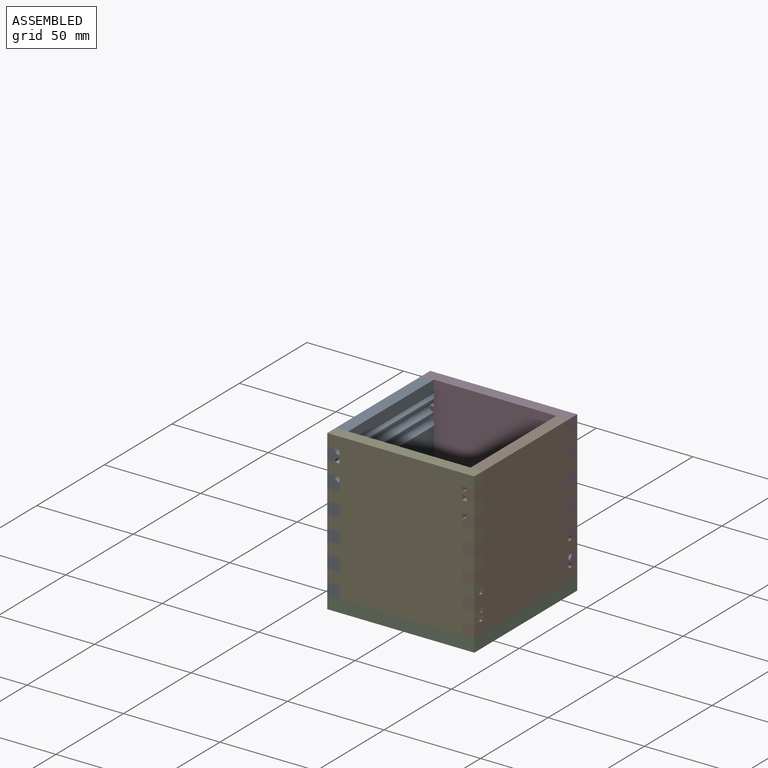
[diagram: assembled view]
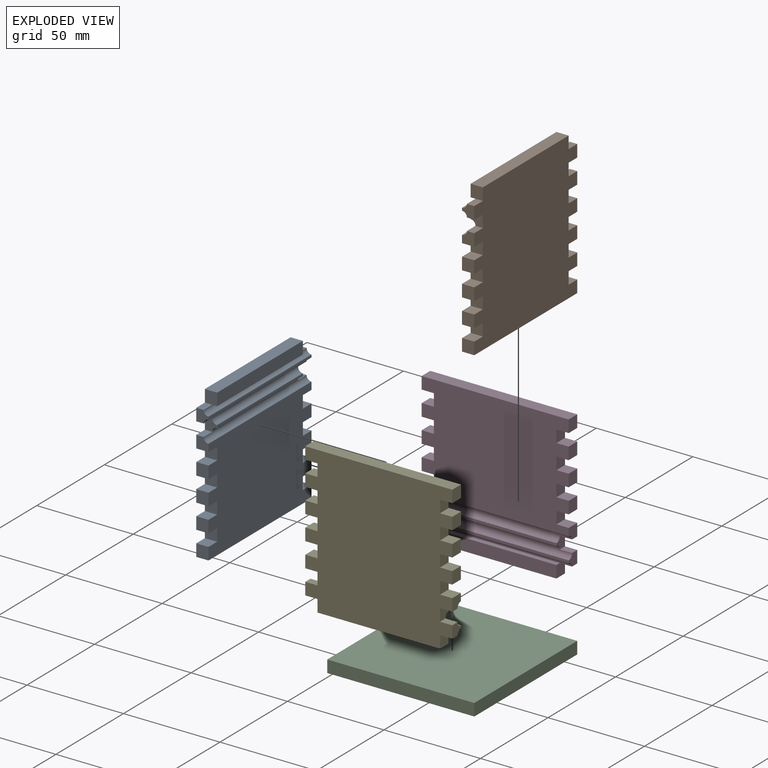
[diagram: exploded view]
GUIDED TOUR — MATED ASSEMBLY (Onshape document 4bcecb40b126440fb56b0a20, AutoMate assembly 4bcecb40b126440fb56b0a20_f1498c39f0a1d220b921871c_9d1d6eb9c86af5bd389e2171_default)

This assembly has 5 components, labeled P0..P4 below (a component is one placed occurrence of a part; the same part can appear more than once), held together by 4 mates. A mate is a constraint between two components; its type names the relative motion it leaves free:
  FASTENED — locks the two components together rigidly (no relative motion).
Axis/direction vectors are unit vectors and 'through' points are millimeter coordinates, both in the assembly's world frame.

MATES
  1. FASTENED "Fastened 4": P0 <-> P3, direction (0.000, 1.000, 0.000) through (-43.61, 105.58, 14.43) mm
  2. FASTENED "Fastened 1": P0 <-> P4, direction (0.000, -1.000, 0.000) through (-43.61, 29.38, 14.43) mm
  3. FASTENED "Fastened 3": P0 <-> P2, direction (0.000, 0.000, 1.000) through (-49.96, 29.38, 8.08) mm
  4. FASTENED "Fastened 2": P2 <-> P1, direction (0.000, 0.000, 1.000) through (26.24, 29.38, 8.08) mm

ASSEMBLY ORDER
  1. P3 — the base component [order verified]
  2. P0 [order verified]
  3. P1 [order verified]
  4. P4 [order verified]
  5. P2 [order verified]
Order-tag legend:
  [order verified] — this step's position reverses a verified removal order: the component was checked to insert without passing through the ones already placed.

Of the 5 components, 5 carry the full construction recipe — the FeatureScript program that regenerates the part's solid from scratch; the rest are supplied as boundary geometry only.
Each toured component is shown spotlighted twice — in the assembled view, then in the exploded view, where a leader line traces a displaced component back to its assembled socket (saturated green if recipe-attached, orange if geometry-only; every other component desaturated gray) — followed by its recipe or geometry summary and the mates that hold it.
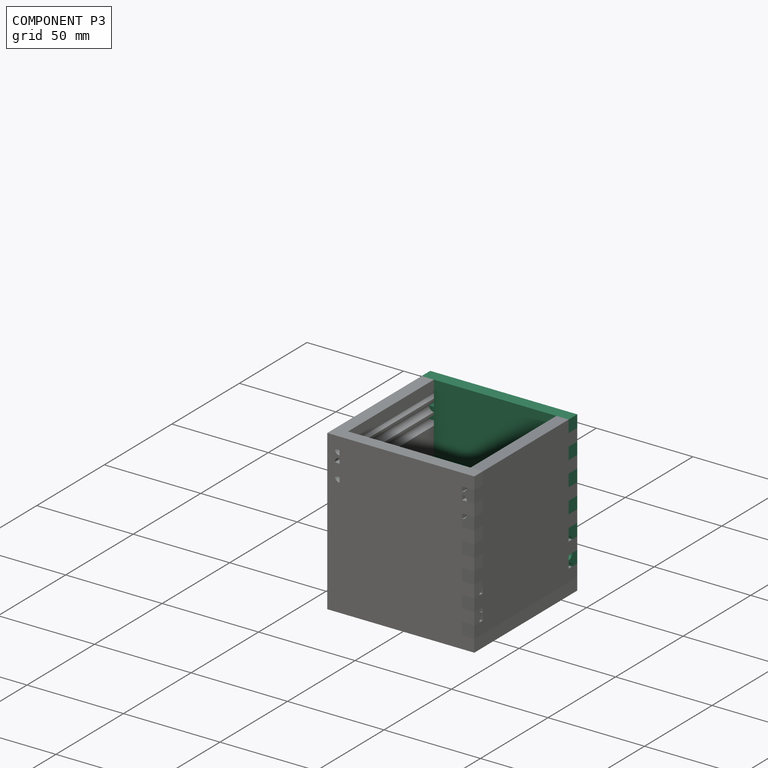
[diagram: component P3 — assembled]
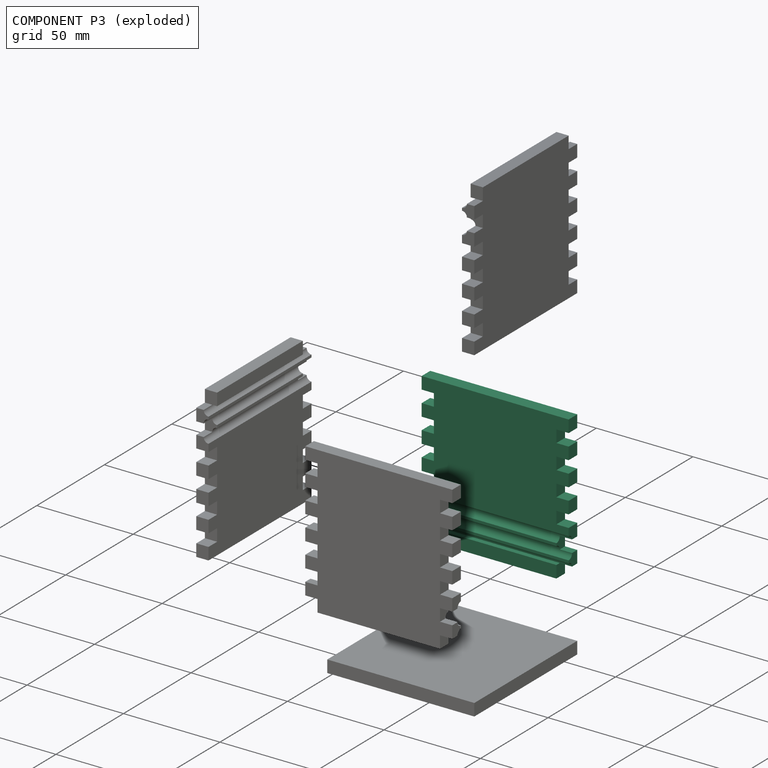
[diagram: component P3 — exploded]
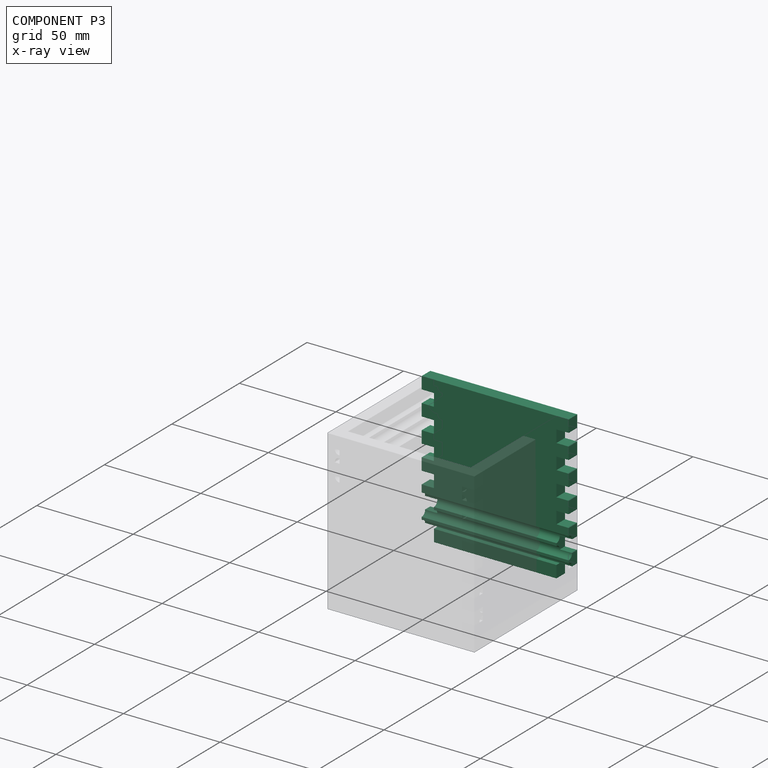
[diagram: component P3 — x-ray view]
COMPONENT P3 — same part as P0 (CADFS 00627153); its construction recipe is shown at P0.
Held by: FASTENED mate "Fastened 4" to P0.
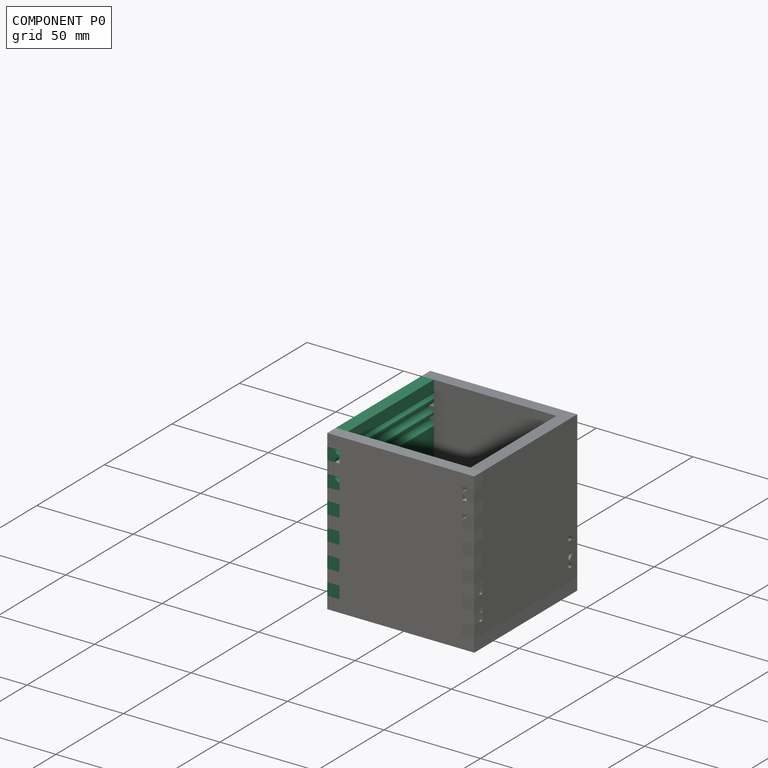
[diagram: component P0 — assembled]
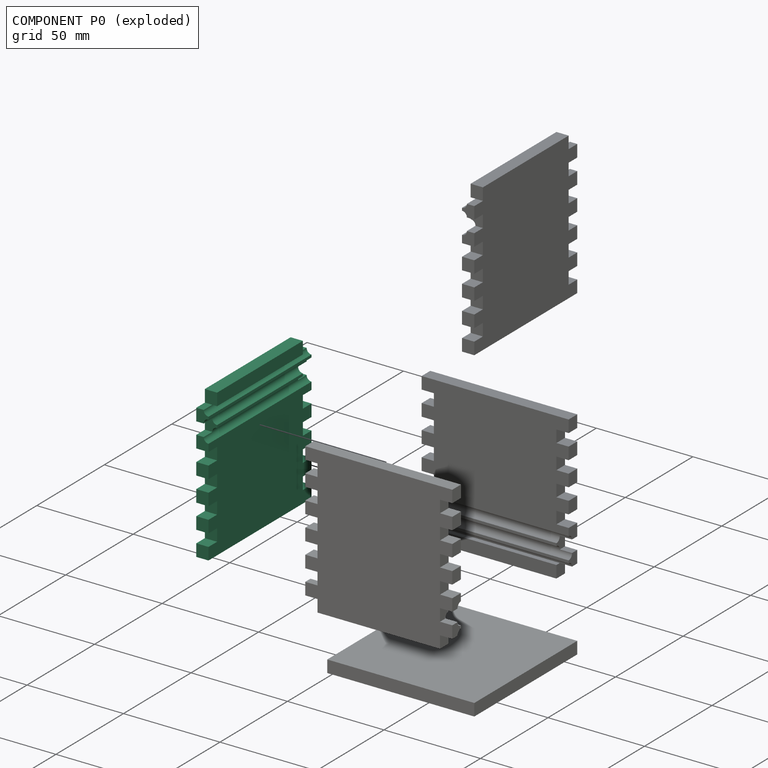
[diagram: component P0 — exploded]
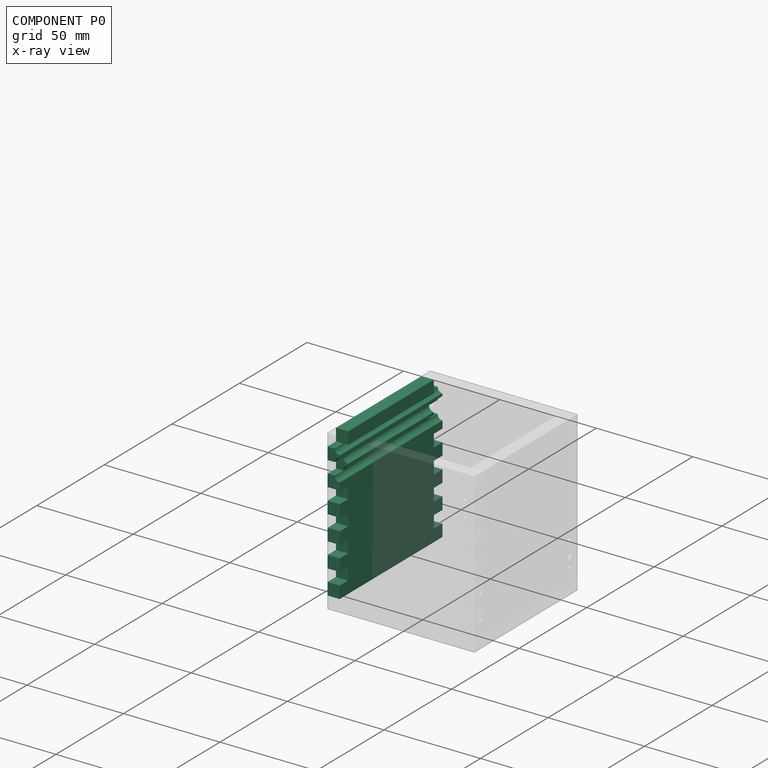
[diagram: component P0 — x-ray view]
COMPONENT P0 — recipe-attached (CADFS 00627153, mesh-verified: the recipe's output STEP matches this component's geometry to below the mesh-comparison resolution (tessellation chordal tolerance ~0.162 mm)).
Held by: FASTENED mate "Fastened 4" to P3; FASTENED mate "Fastened 1" to P4; FASTENED mate "Fastened 3" to P2.
Construction recipe (FeatureScript — the CAD program that rebuilds this solid; sketch coordinates are in the units given by the * unit suffixes, e.g. mm):

FeatureScript 1511;
import(path : "onshape/std/geometry.fs", version : "1511.0");
import(path : "onshape/std/common.fs", version : "1511.0");
const mm = millimeter;
const VERTEX = EntityType.VERTEX;
const EDGE = EntityType.EDGE;
const FACE = EntityType.FACE;
const BODY = EntityType.BODY;
function v(x, y){return vector(x, y);}
function OD(order){return orderDisambiguation(order);}
function OSD(set){return originalSetDisambiguation(set);}
function TD(topology){return topologyDisambiguation(topology);}
function TDD(query){return trueDependencyDisambiguation(query);}
function sQuery(a, b, c) {return sketchEntityQuery(a, b, c);}

annotation { "Feature Type Name" : "Feature", "Feature Type Description" : "" }
export const myFeature = defineFeature(function(context is Context, id is Id, definition is map)
    precondition{}
    {
        {
            var Q0;
            Q0=qCreatedBy(makeId("Front.planeOp"),FACE);
            var sketch = newSketch(context, id + "F0", { "sketchPlane" : qUnion([Q0])});
            skLineSegment(sketch, "E0", {"start": v(-134.03, 0) * mm, "end": v(134.03, 0) * mm, "construction": true});
            skLineSegment(sketch, "E1.bottom", {"start": v(-38.1, 38.1) * mm, "end": v(38.1, 38.1) * mm});
            skLineSegment(sketch, "E1.top", {"start": v(-38.1, -38.1) * mm, "end": v(38.1, -38.1) * mm});
            skLineSegment(sketch, "E1.left", {"start": v(-38.1, 38.1) * mm, "end": v(-38.1, -38.1) * mm});
            skLineSegment(sketch, "E1.right", {"start": v(38.1, 38.1) * mm, "end": v(38.1, -38.1) * mm});
            skLineSegment(sketch, "E2", {"start": v(0, 82.06) * mm, "end": v(0, -82.06) * mm, "construction": true});
            skLineSegment(sketch, "E3", {"start": v(-31.75, 38.1) * mm, "end": v(-31.75, -38.1) * mm, "construction": true});
            skLineSegment(sketch, "E4", {"start": v(31.75, 38.1) * mm, "end": v(31.75, -38.1) * mm, "construction": true});
            skLineSegment(sketch, "E5", {"start": v(-38.1, 31.75) * mm, "end": v(-31.75, 31.75) * mm});
            skLineSegment(sketch, "E6.0.1.0", {"start": v(-38.1, 25.4) * mm, "end": v(-31.75, 25.4) * mm});
            skLineSegment(sketch, "E6.0.2.0", {"start": v(-38.1, 19.05) * mm, "end": v(-31.75, 19.05) * mm});
            skLineSegment(sketch, "E6.0.3.0", {"start": v(-38.1, 12.7) * mm, "end": v(-31.75, 12.7) * mm});
            skLineSegment(sketch, "E6.0.4.0", {"start": v(-38.1, 6.35) * mm, "end": v(-31.75, 6.35) * mm});
            skLineSegment(sketch, "E6.0.5.0", {"start": v(-38.1, 0) * mm, "end": v(-31.75, 0) * mm});
            skLineSegment(sketch, "E6.0.6.0", {"start": v(-38.1, -6.35) * mm, "end": v(-31.75, -6.35) * mm});
            skLineSegment(sketch, "E6.0.7.0", {"start": v(-38.1, -12.7) * mm, "end": v(-31.75, -12.7) * mm});
            skLineSegment(sketch, "E6.0.8.0", {"start": v(-38.1, -19.05) * mm, "end": v(-31.75, -19.05) * mm});
            skLineSegment(sketch, "E6.0.9.0", {"start": v(-38.1, -25.4) * mm, "end": v(-31.75, -25.4) * mm});
            skLineSegment(sketch, "E6.0.10.0", {"start": v(-38.1, -31.75) * mm, "end": v(-31.75, -31.75) * mm});
            skLineSegment(sketch, "E6.0.11.0", {"start": v(-38.1, -38.1) * mm, "end": v(-31.75, -38.1) * mm});
            skLineSegment(sketch, "E6.direction1", {"start": v(-38.1, 31.75) * mm, "end": v(-13.1, 31.75) * mm, "construction": true});
            skLineSegment(sketch, "E6.direction2", {"start": v(-38.1, 31.75) * mm, "end": v(-38.1, 25.4) * mm, "construction": true});
            skLineSegment(sketch, "E7", {"start": v(-31.75, 38.1) * mm, "end": v(-31.75, 31.75) * mm});
            skLineSegment(sketch, "E8", {"start": v(-31.75, 25.4) * mm, "end": v(-31.75, 19.05) * mm});
            skLineSegment(sketch, "E9", {"start": v(-31.75, 12.7) * mm, "end": v(-31.75, 6.35) * mm});
            skLineSegment(sketch, "E10", {"start": v(-31.75, 0) * mm, "end": v(-31.75, -6.35) * mm});
            skLineSegment(sketch, "E11", {"start": v(-31.75, -12.7) * mm, "end": v(-31.75, -19.05) * mm});
            skLineSegment(sketch, "E12", {"start": v(-31.75, -25.4) * mm, "end": v(-31.75, -31.75) * mm});
            skLineSegment(sketch, "E13.MirrorCS", {"start": v(31.75, 38.1) * mm, "end": v(31.75, 31.75) * mm});
            skLineSegment(sketch, "E14.MirrorCS", {"start": v(38.1, 31.75) * mm, "end": v(38.1, 25.4) * mm, "construction": true});
            skLineSegment(sketch, "E15.MirrorCS", {"start": v(38.1, 31.75) * mm, "end": v(31.75, 31.75) * mm});
            skLineSegment(sketch, "E16.MirrorCS", {"start": v(38.1, 25.4) * mm, "end": v(31.75, 25.4) * mm});
            skLineSegment(sketch, "E17.MirrorCS", {"start": v(31.75, -25.4) * mm, "end": v(31.75, -31.75) * mm});
            skLineSegment(sketch, "E18.MirrorCS", {"start": v(31.75, 25.4) * mm, "end": v(31.75, 19.05) * mm});
            skLineSegment(sketch, "E19.MirrorCS", {"start": v(31.75, 12.7) * mm, "end": v(31.75, 6.35) * mm});
            skLineSegment(sketch, "E20.MirrorCS", {"start": v(31.75, -12.7) * mm, "end": v(31.75, -19.05) * mm});
            skLineSegment(sketch, "E21.MirrorCS", {"start": v(38.1, -38.1) * mm, "end": v(31.75, -38.1) * mm});
            skLineSegment(sketch, "E22.MirrorCS", {"start": v(31.75, 0) * mm, "end": v(31.75, -6.35) * mm});
            skLineSegment(sketch, "E23.MirrorCS", {"start": v(38.1, -25.4) * mm, "end": v(31.75, -25.4) * mm});
            skLineSegment(sketch, "E24.MirrorCS", {"start": v(38.1, -31.75) * mm, "end": v(31.75, -31.75) * mm});
            skLineSegment(sketch, "E25.MirrorCS", {"start": v(38.1, -19.05) * mm, "end": v(31.75, -19.05) * mm});
            skLineSegment(sketch, "E26.MirrorCS", {"start": v(38.1, 19.05) * mm, "end": v(31.75, 19.05) * mm});
            skLineSegment(sketch, "E27.MirrorCS", {"start": v(38.1, 12.7) * mm, "end": v(31.75, 12.7) * mm});
            skLineSegment(sketch, "E28.MirrorCS", {"start": v(38.1, 0) * mm, "end": v(31.75, 0) * mm});
            skLineSegment(sketch, "E29.MirrorCS", {"start": v(38.1, -6.35) * mm, "end": v(31.75, -6.35) * mm});
            skLineSegment(sketch, "E30.MirrorCS", {"start": v(38.1, -12.7) * mm, "end": v(31.75, -12.7) * mm});
            skLineSegment(sketch, "E31.MirrorCS", {"start": v(38.1, 6.35) * mm, "end": v(31.75, 6.35) * mm});
            skSolve(sketch);
        }
        {
            var Q0;
            Q0=makeQuery(id+"F0.imprint","IMPRINT",FACE,{"disambiguationData":[TD([[makeQuery(id+"F0.imprint","IMPRINT",EDGE,{"derivedFrom":sQuery(id+"F0.wireOp",EDGE,"E1.top")}),1.0]])]});
            extrude(context, id + "F1", {"entities" : qUnion([Q0]), "depth" : 6.35 * mm, "offsetDistance" : 25 * mm});
        }
        {
            var Q0;
            {var subQ0=sQuery(id+"F0.wireOp",EDGE,"E1.left");Q0=makeQuery(id+"F1.opExtrude","SWEPT_FACE",FACE,{"disambiguationData":[OSD([subQ0]),TDD([makeQuery(id+"F0.imprint","IMPRINT",EDGE,{"disambiguationData":[TD([[makeQuery(id+"F0.imprint","INTERSECT",VERTEX,{"derivedFrom":[subQ0,sQuery(id+"F0.wireOp",EDGE,"E5")]}),-1.0]])],"derivedFrom":subQ0})])]});}
            var sketch = newSketch(context, id + "F2", { "sketchPlane" : qUnion([Q0])});
            skLineSegment(sketch, "E32.0.0", {"start": v(0, 38.1) * mm, "end": v(0, 31.75) * mm, "construction": true});
            skLineSegment(sketch, "E32.0.1", {"start": v(0, 31.75) * mm, "end": v(6.35, 31.75) * mm, "construction": true});
            skLineSegment(sketch, "E32.0.2", {"start": v(6.35, 31.75) * mm, "end": v(6.35, 38.1) * mm, "construction": true});
            skLineSegment(sketch, "E32.0.3", {"start": v(6.35, 38.1) * mm, "end": v(0, 38.1) * mm, "construction": true});
            skLineSegment(sketch, "E33", {"start": v(6.35, 38.1) * mm, "end": v(6.35, 5.95) * mm, "construction": true});
            skLineSegment(sketch, "E34.0.0", {"start": v(0, 31.75) * mm, "end": v(0, 25.4) * mm, "construction": true});
            skLineSegment(sketch, "E34.0.1", {"start": v(0, 25.4) * mm, "end": v(6.35, 25.4) * mm, "construction": true});
            skLineSegment(sketch, "E34.0.2", {"start": v(6.35, 25.4) * mm, "end": v(6.35, 31.75) * mm, "construction": true});
            skLineSegment(sketch, "E34.0.3", {"start": v(6.35, 31.75) * mm, "end": v(0, 31.75) * mm, "construction": true});
            skLineSegment(sketch, "E35.0.0", {"start": v(0, 25.4) * mm, "end": v(0, 19.05) * mm, "construction": true});
            skLineSegment(sketch, "E35.0.1", {"start": v(0, 19.05) * mm, "end": v(6.35, 19.05) * mm, "construction": true});
            skLineSegment(sketch, "E35.0.2", {"start": v(6.35, 19.05) * mm, "end": v(6.35, 25.4) * mm, "construction": true});
            skLineSegment(sketch, "E35.0.3", {"start": v(6.35, 25.4) * mm, "end": v(0, 25.4) * mm, "construction": true});
            skLineSegment(sketch, "E36.0.0", {"start": v(0, 19.05) * mm, "end": v(0, 12.7) * mm, "construction": true});
            skLineSegment(sketch, "E36.0.1", {"start": v(0, 12.7) * mm, "end": v(6.35, 12.7) * mm, "construction": true});
            skLineSegment(sketch, "E36.0.2", {"start": v(6.35, 12.7) * mm, "end": v(6.35, 19.05) * mm, "construction": true});
            skLineSegment(sketch, "E36.0.3", {"start": v(6.35, 19.05) * mm, "end": v(0, 19.05) * mm, "construction": true});
            skCircle(sketch, "E37", {"center": v(6.35, 31.75) * mm, "radius": 2.5 * mm});
            skCircle(sketch, "E38", {"center": v(6.35, 25.4) * mm, "radius": 2.5 * mm});
            skCircle(sketch, "E39", {"center": v(6.35, 19.05) * mm, "radius": 2.5 * mm});
            skSolve(sketch);
        }
        {
            var Q0;
            {var subQ0=sQuery(id+"F2.wireOp",EDGE,"E37");var subQ1=sQuery(id+"F0.wireOp",EDGE,"E5");var subQ2=sQuery(id+"F0.wireOp",EDGE,"E1.left");var subQ3=makeQuery(id+"F1.opExtrude","SWEPT_EDGE",EDGE,{"disambiguationData":[OSD([subQ2,subQ1])]});var subQ4=makeQuery(id+"F2.imprint","INTERSECT",VERTEX,{"derivedFrom":[subQ3,subQ0]});Q0=makeQuery(id+"F2.imprint","IMPRINT",FACE,{"disambiguationData":[TD([[makeQuery(id+"F2.imprint","IMPRINT",EDGE,{"disambiguationData":[TD([[subQ4,-1.0]])],"derivedFrom":subQ0}),1.0]])]});}
            var Q1;
            {var subQ0=sQuery(id+"F2.wireOp",EDGE,"E38");var subQ1=sQuery(id+"F0.wireOp",EDGE,"E6.0.1.0");var subQ2=sQuery(id+"F0.wireOp",EDGE,"E1.left");var subQ3=makeQuery(id+"F1.opExtrude","SWEPT_EDGE",EDGE,{"disambiguationData":[OSD([subQ2,subQ1])]});var subQ4=makeQuery(id+"F2.imprint","INTERSECT",VERTEX,{"derivedFrom":[subQ3,subQ0]});Q1=makeQuery(id+"F2.imprint","IMPRINT",FACE,{"disambiguationData":[TD([[makeQuery(id+"F2.imprint","IMPRINT",EDGE,{"disambiguationData":[TD([[subQ4,1.0]])],"derivedFrom":subQ0}),1.0]])]});}
            var Q2;
            {var subQ0=sQuery(id+"F2.wireOp",EDGE,"E38");var subQ1=sQuery(id+"F0.wireOp",EDGE,"E6.0.1.0");var subQ2=sQuery(id+"F0.wireOp",EDGE,"E1.left");var subQ3=makeQuery(id+"F1.opExtrude","SWEPT_EDGE",EDGE,{"disambiguationData":[OSD([subQ2,subQ1])]});var subQ4=makeQuery(id+"F2.imprint","INTERSECT",VERTEX,{"derivedFrom":[subQ3,subQ0]});Q2=makeQuery(id+"F2.imprint","IMPRINT",FACE,{"disambiguationData":[TD([[makeQuery(id+"F2.imprint","IMPRINT",EDGE,{"disambiguationData":[TD([[subQ4,-1.0]])],"derivedFrom":subQ0}),1.0]])]});}
            var Q3;
            Q3=makeQuery(id+"F2.imprint","IMPRINT",FACE,{"disambiguationData":[TD([[makeQuery(id+"F2.imprint","IMPRINT",EDGE,{"derivedFrom":sQuery(id+"F2.wireOp",EDGE,"E39")}),1.0]])]});
            extrude(context, id + "F3", {"entities" : qUnion([Q0, Q1, Q2, Q3]), "operationType" : NewBodyOperationType.REMOVE, "endBound" : BoundingType.THROUGH_ALL, "oppositeDirection" : true, "depth" : 25 * mm, "offsetDistance" : 25 * mm});
        }
    });
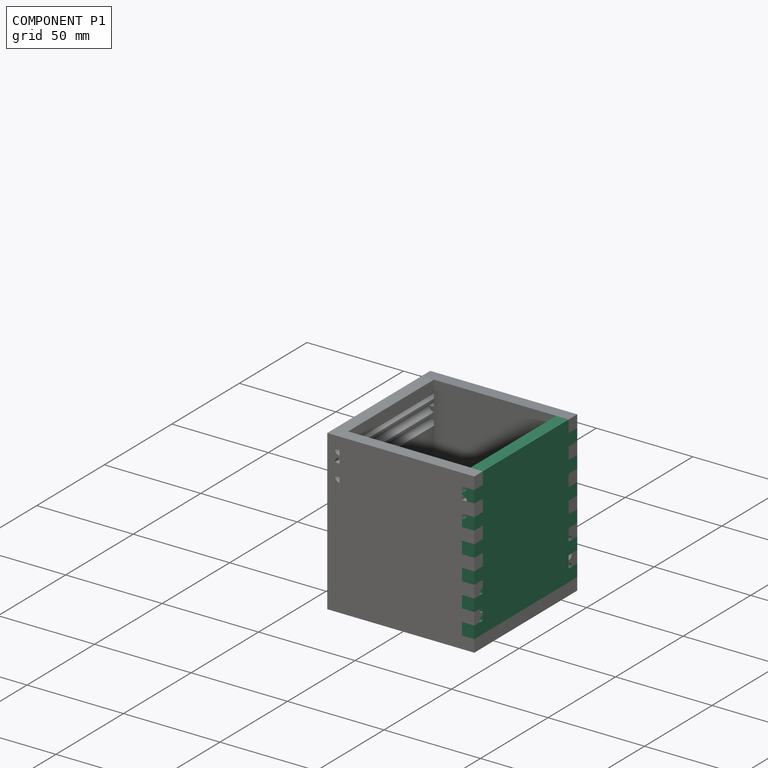
[diagram: component P1 — assembled]
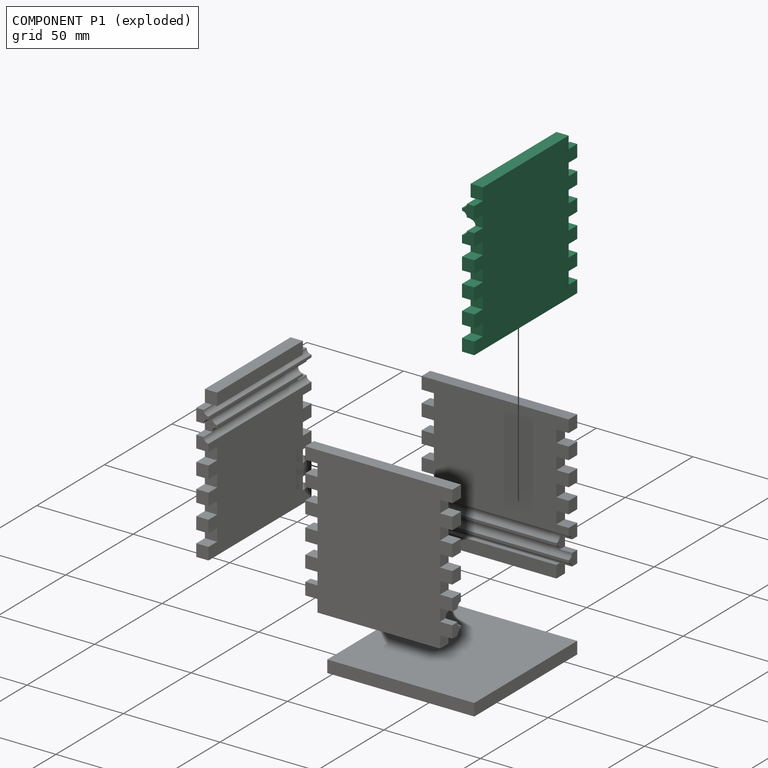
[diagram: component P1 — exploded]
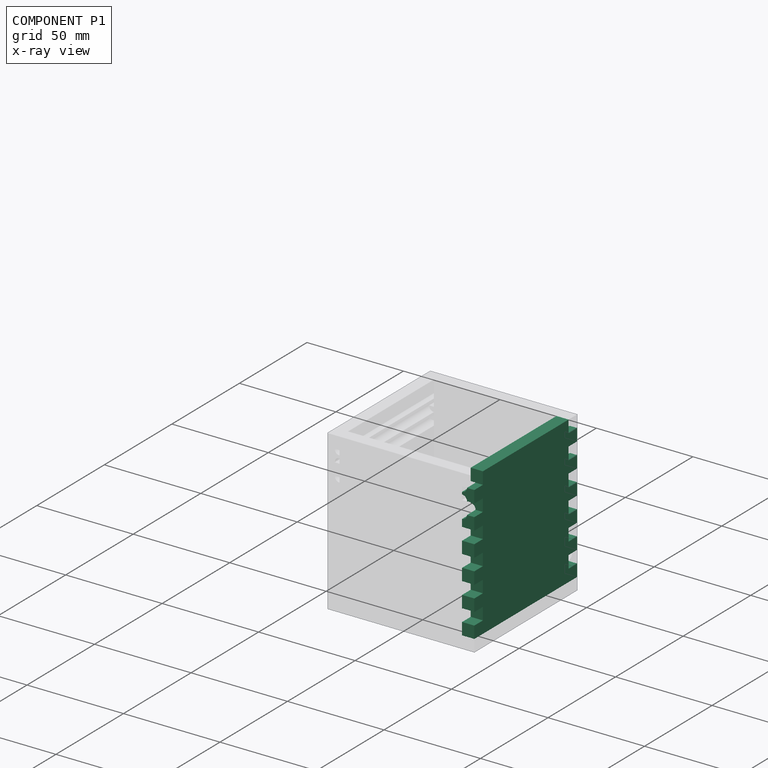
[diagram: component P1 — x-ray view]
COMPONENT P1 — same part as P0 (CADFS 00627153); its construction recipe is shown at P0.
Held by: FASTENED mate "Fastened 2" to P2.
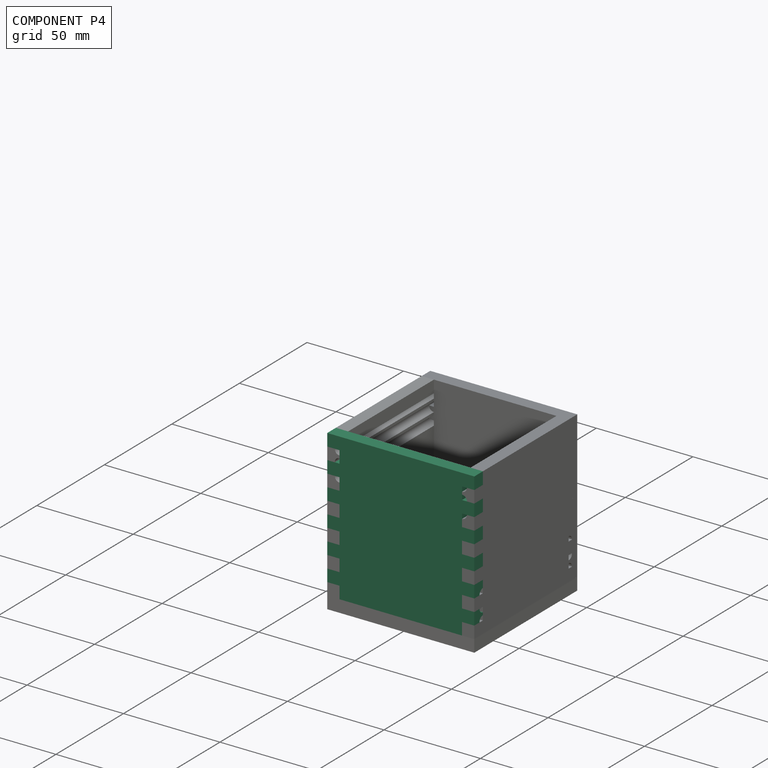
[diagram: component P4 — assembled]
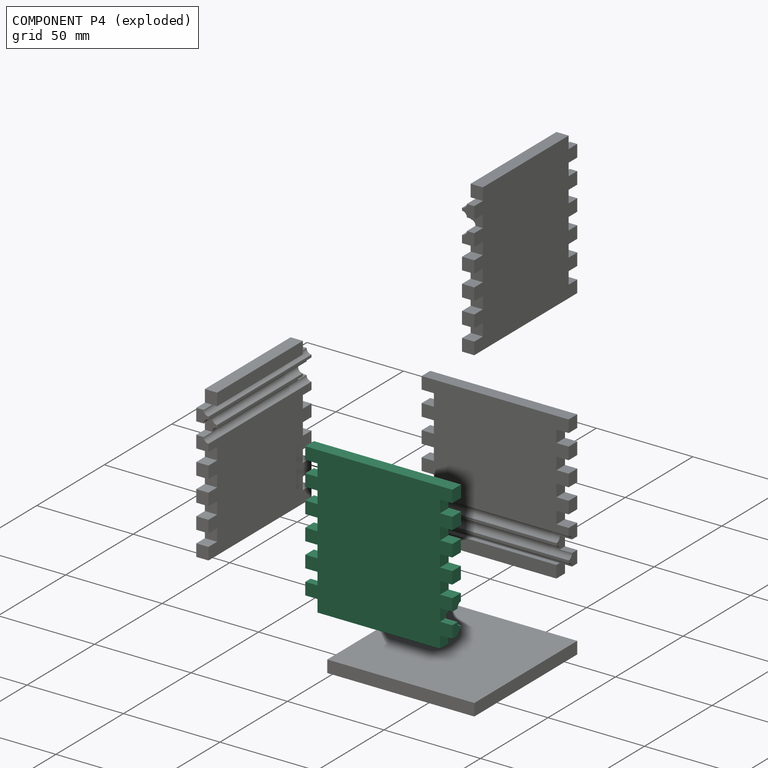
[diagram: component P4 — exploded]
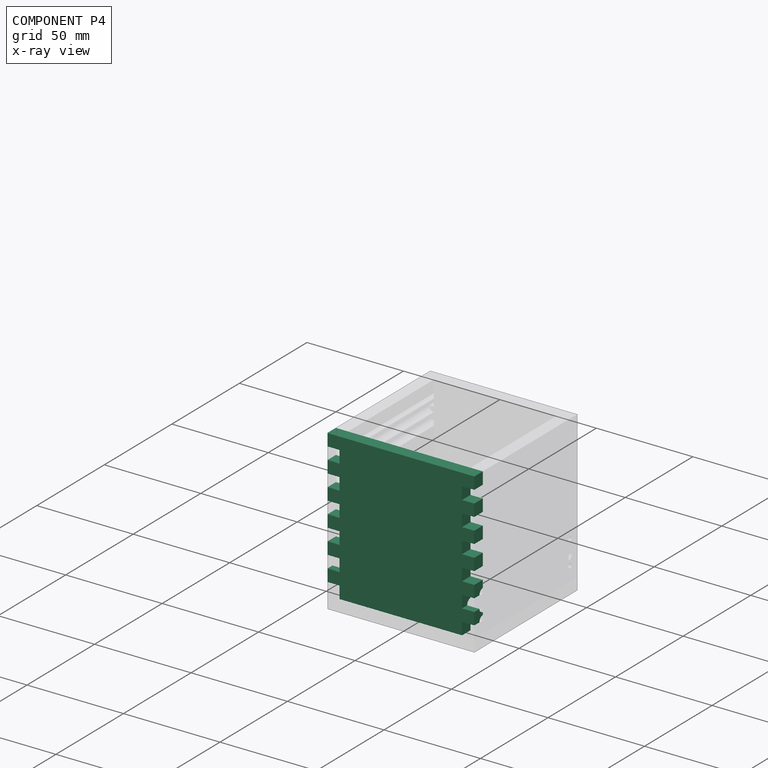
[diagram: component P4 — x-ray view]
COMPONENT P4 — same part as P0 (CADFS 00627153); its construction recipe is shown at P0.
Held by: FASTENED mate "Fastened 1" to P0.
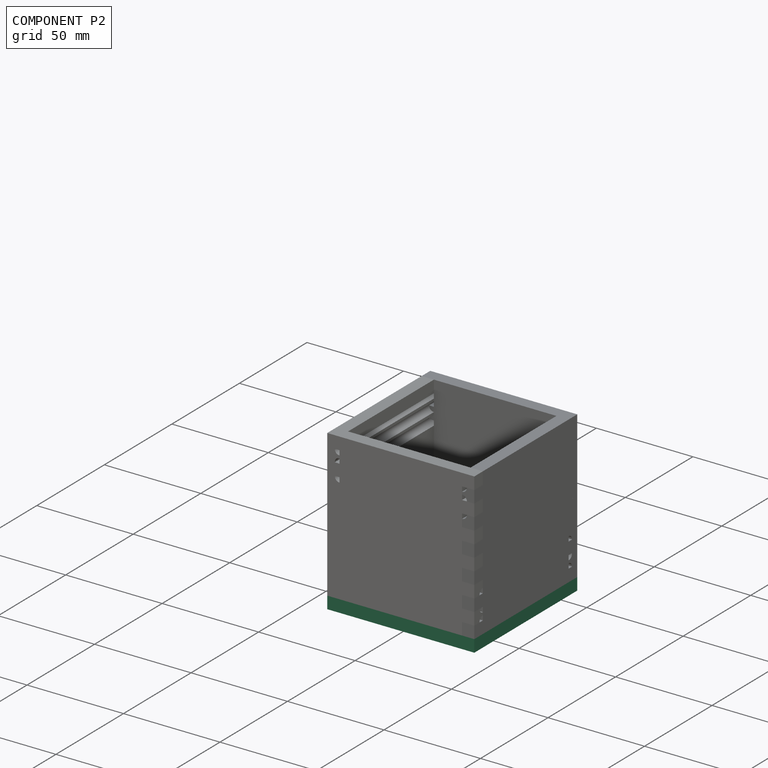
[diagram: component P2 — assembled]
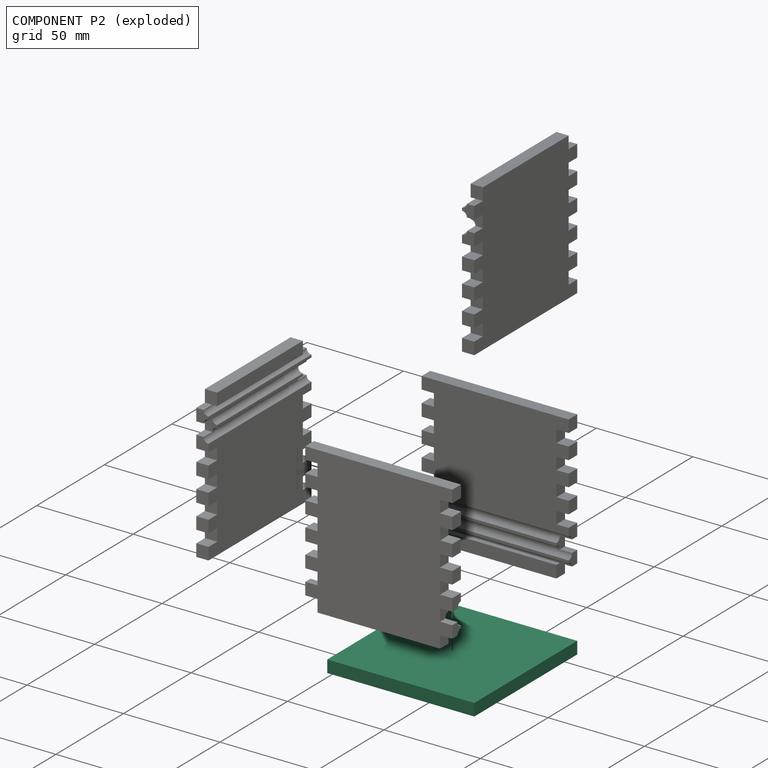
[diagram: component P2 — exploded]
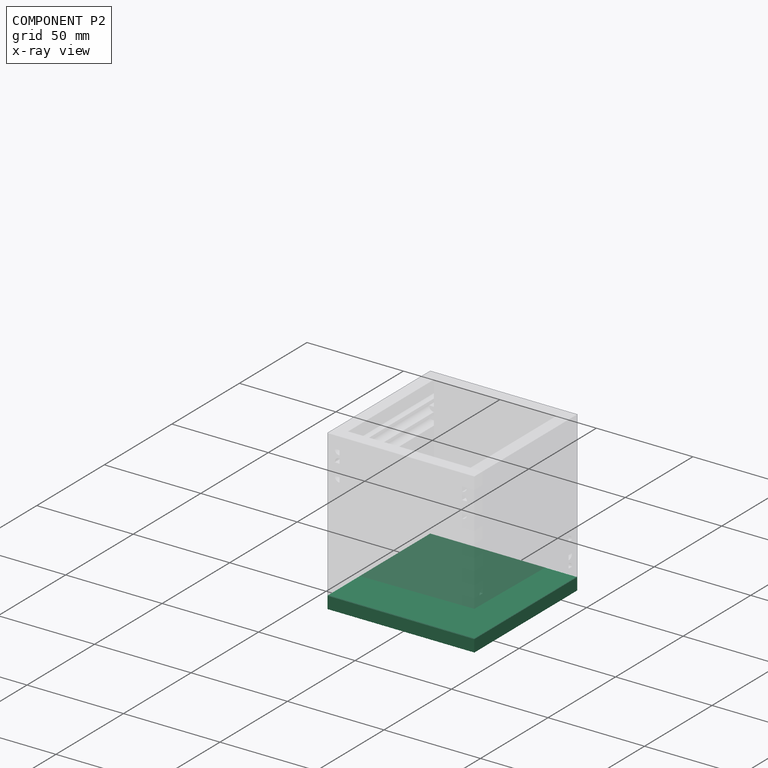
[diagram: component P2 — x-ray view]
COMPONENT P2 — recipe-attached (CADFS 00627156, mesh-verified: the recipe's output STEP matches this component's geometry to below the mesh-comparison resolution (tessellation chordal tolerance ~0.162 mm)).
Held by: FASTENED mate "Fastened 3" to P0; FASTENED mate "Fastened 2" to P1.
Construction recipe (FeatureScript — the CAD program that rebuilds this solid; sketch coordinates are in the units given by the * unit suffixes, e.g. mm):

FeatureScript 1511;
import(path : "onshape/std/geometry.fs", version : "1511.0");
import(path : "onshape/std/common.fs", version : "1511.0");
const mm = millimeter;
const VERTEX = EntityType.VERTEX;
const EDGE = EntityType.EDGE;
const FACE = EntityType.FACE;
const BODY = EntityType.BODY;
function v(x, y){return vector(x, y);}
function OD(order){return orderDisambiguation(order);}
function OSD(set){return originalSetDisambiguation(set);}
function TD(topology){return topologyDisambiguation(topology);}
function TDD(query){return trueDependencyDisambiguation(query);}
function sQuery(a, b, c) {return sketchEntityQuery(a, b, c);}

annotation { "Feature Type Name" : "Feature", "Feature Type Description" : "" }
export const myFeature = defineFeature(function(context is Context, id is Id, definition is map)
    precondition{}
    {
        {
            var Q0;
            Q0=qCreatedBy(makeId("Top.planeOp"),FACE);
            var sketch = newSketch(context, id + "F0", { "sketchPlane" : qUnion([Q0])});
            skLineSegment(sketch, "E0.bottom", {"start": v(-76.2, 0) * mm, "end": v(0, 0) * mm});
            skLineSegment(sketch, "E0.top", {"start": v(-76.2, 76.2) * mm, "end": v(0, 76.2) * mm});
            skLineSegment(sketch, "E0.left", {"start": v(-76.2, 0) * mm, "end": v(-76.2, 76.2) * mm});
            skLineSegment(sketch, "E0.right", {"start": v(0, 0) * mm, "end": v(0, 76.2) * mm});
            skSolve(sketch);
        }
        {
            var Q0;
            Q0 = qSketchRegion(id + "F0", true);
            extrude(context, id + "F1", {"entities" : qUnion([Q0]), "depth" : 6.35 * mm, "offsetDistance" : 25 * mm});
        }
    });
PROVENANCE & LICENSES
Assembly (occurrences, transforms, mates, per-part STEP geometry): AutoMate dataset, Zenodo record 7776208, CC0.
Construction recipes: CADFS (HuggingFace VladPyatov/CADFS, CC-BY-4.0, layered over the ABC dataset), FeatureScript reconstruction programs keyed by ABC model id.
Join: ABC meta listings map ABC model id -> Onshape documentId; within a shared document, parts are matched by geometric signature (bounding-box dims + volume at 0.1% relative tolerance, exact B-rep face/solid counts).
Verification: 5 of this assembly's 5 components carry a recipe attachment, and every attachment is mesh-verified: the CADFS STEP and the AutoMate member STEP were compared as meshes in their shared local frame (symmetric sampled-point-to-mesh distance); worst across the 5 attachments: below the mesh-comparison resolution (tessellation chordal tolerance ~0.162 mm) on a 108 mm part.
Renders: orthographic iso camera (az 35 / el 25); the floor grid conveys scale (grid pitch printed in each image; no ruler). In the exploded view each component is displaced by its stored offset vector: the offsets alone carry the explosion direction (mate normal/axis signs are not orientation cues and do not encode it), and separation distances are assigned per mate-chain, not proportionally to assembly-order depth.
